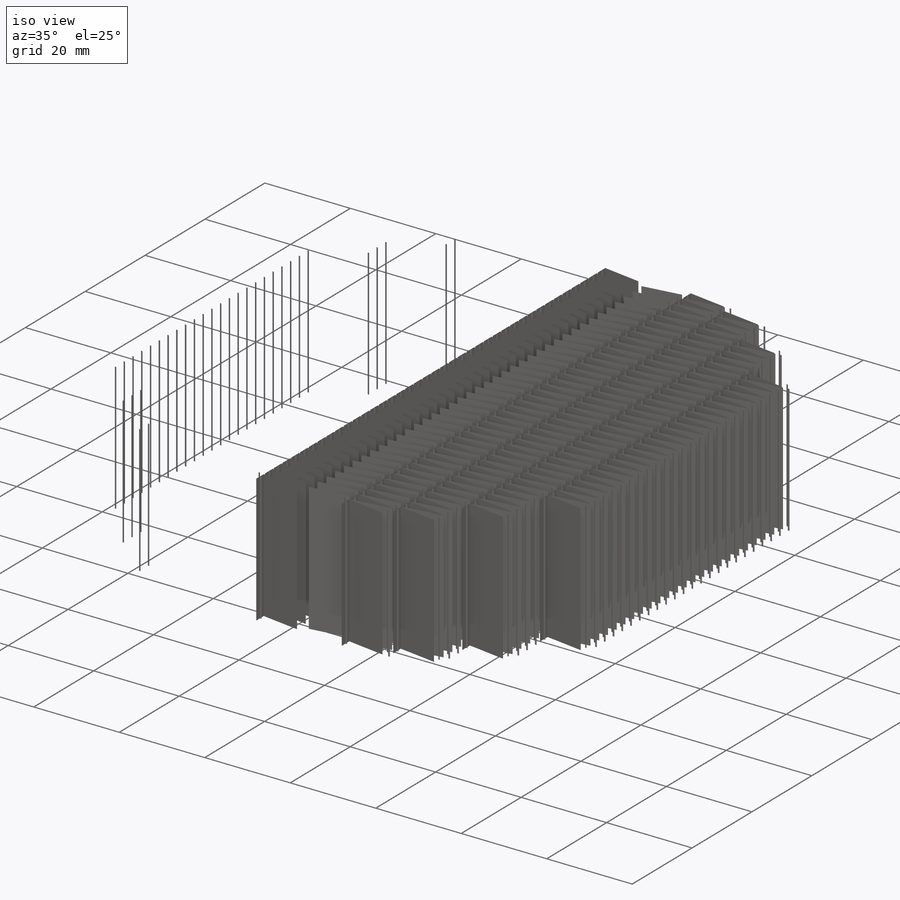
[diagram: iso view]
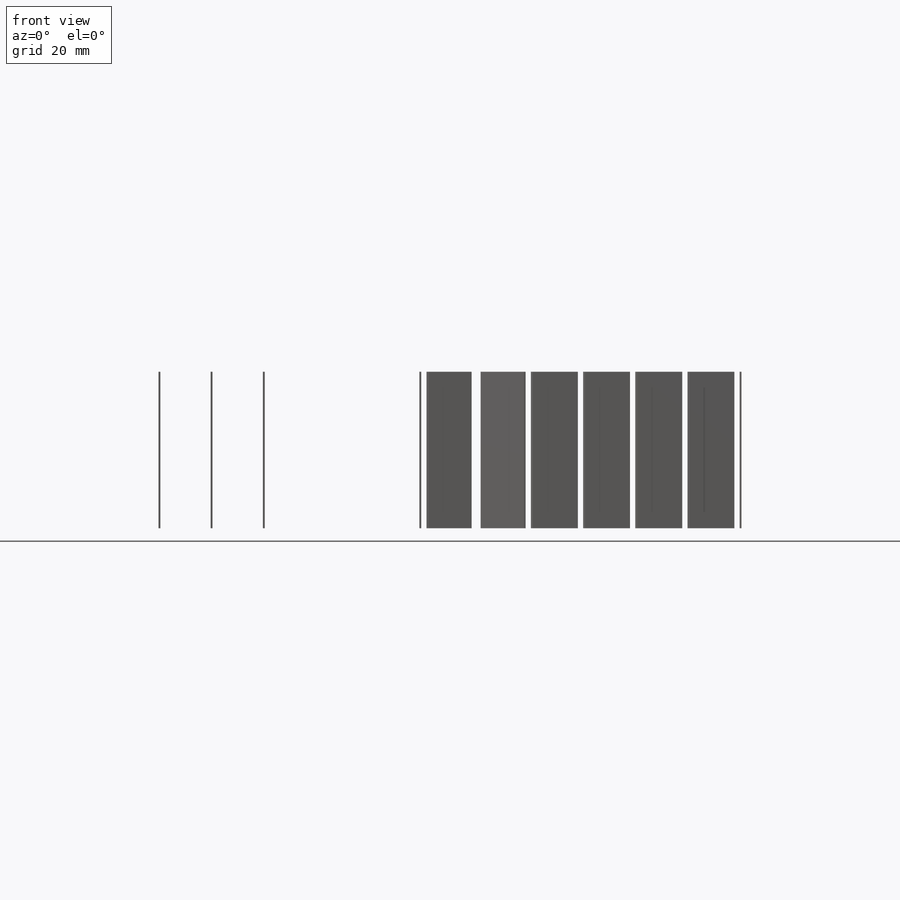
[diagram: front view]
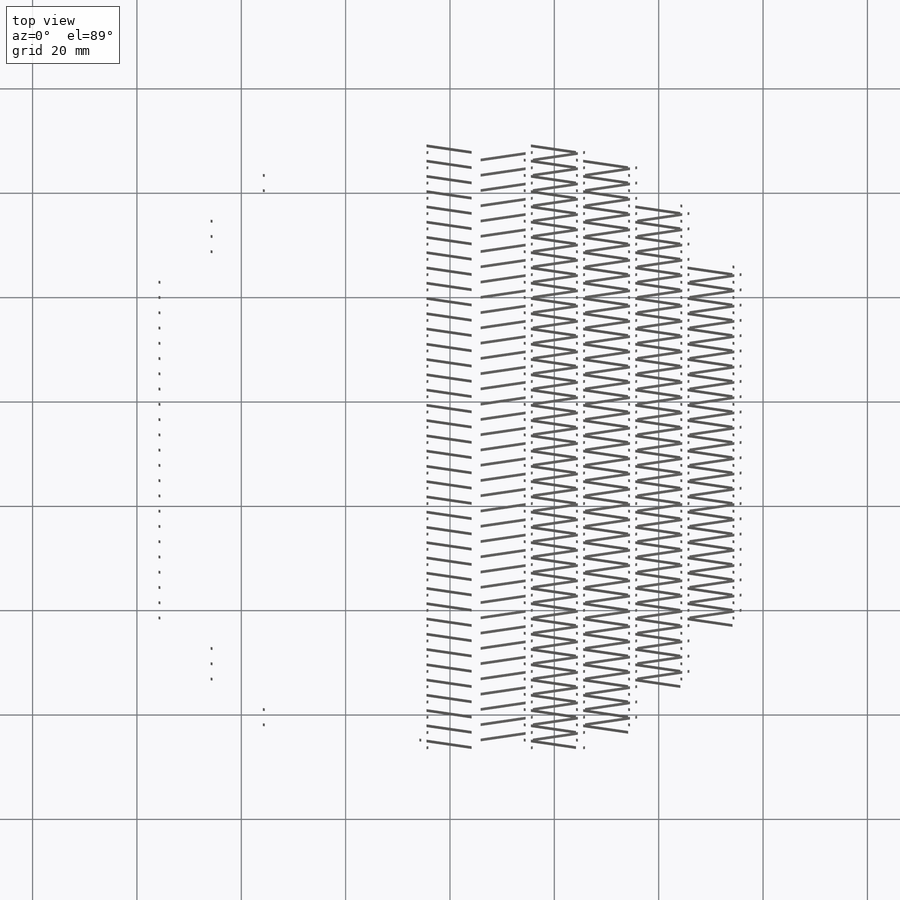
[diagram: top view]
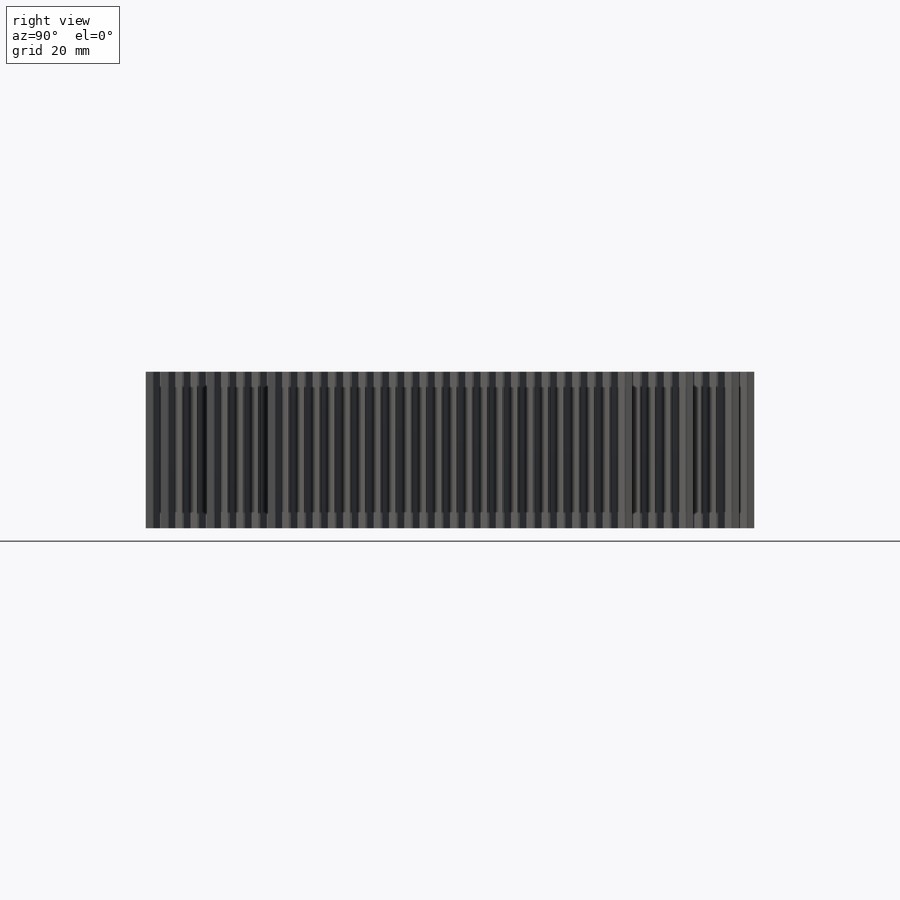
[diagram: right view]
SOLIDWORKS PART (.sldprt)
format: sldprt  version: not decoded by parser v0  size: 6,994,432 bytes
history: native  units: mm
features: sketch x10, thread x6, extrude x2, hole x2, fillet x2, material x1, pattern_linear x1, cut_extrude x1 (+11 scaffold rows collapsed)
feature tree (36):
  scaffold x11  (default folders/planes/origin — collapsed)
  material  "Material <not specified>"
  sketch  "Sketch1"  dims[c1.D10=120.0mm c1.D11=80.0mm c1.D14=80.0mm c1.D1=410.0mm c1.D2=128.0mm c1.D3=7.0mm c1.D4=28.0mm c1.D5=60.0mm c1.D6=5.0mm c1.D7=105.0mm c1.D8=39.0mm c1.D9=105.0mm c1.D12=15.0mm c1.D13=15.0mm c1.D15=47.0mm c2.D5=5.0mm c2.D15=17.0mm c2.D16=22.0mm c2.D17=5.0mm c3.D15=5.0mm]
  extrude  "Extrude1"  Depth=30mm
  sketch  "Sketch2"  dims[c1.D1=5.0mm c1.D2=10.0mm c1.D3=10.0mm c2.D3=~25.675151deg c3.D3=10.0mm c4.D3=25.0deg c5.D3=4.5mm c5.D1=30.0mm c5.D5=0.25mm c5.D6=1.0mm c5.D7=5.0mm]
  sketch  "Sketch3"  dims[D1=30.0mm D5=0.5mm D6=1.0mm D7=5.0mm]
  sketch  "Sketch5"  dims[D1=30.0mm D5=0.5mm D6=1.0mm D7=5.0mm]
  pattern_linear  "LPattern1"  Count1=7 Count2=7 Spacing1=10mm Spacing2=10mm
  sketch  "Sketch6"  dims[D1=0.0mm D2=0.0mm]
  cut_extrude  "Extrude2"  [1 undecoded]
  hole  "M3.5x0.6 Tapped Hole1"  Diameter=2.9mm Depth=30mm
  sketch  "Sketch8"
  sketch  "Sketch7"  dims[hole-wizard template sketch: 59 standard entries collapsed; hole parameters kept: c18.Thru Tap Drill Dia.=2.9mm c18.Thru Tap Drill Depth=30.0mm]
  thread  "Hole Thread5"  Diameter=3.5mm  [1 undecoded]
  thread  "Hole Thread6"  Diameter=3.5mm  [1 undecoded]
  thread  "Hole Thread7"  Diameter=3.5mm  [1 undecoded]
  thread  "Hole Thread8"  Diameter=3.5mm  [1 undecoded]
  sketch  "Sketch9"  dims[c1.D5=5.0mm c1.D6=3.0mm c1.D1=2.0mm c1.D2=94.0mm c1.D3=125.0mm c1.D4=~35.764012mm c2.D4=23.0deg]
  extrude  "Extrude3"  Depth=30mm
  fillet  "Fillet1"  Radius=1mm
  fillet  "Fillet3"  Radius=3mm
  hole  "1/4-18 NPSM Tapped Hole1"  [1 undecoded]
  sketch  "Sketch11"
  thread  "Hole Thread9"  Diameter=13.3604mm  [1 undecoded]
  thread  "Hole Thread10"  Diameter=13.3604mm  [1 undecoded]
  sketch  "Sketch10"  dims[hole-wizard template sketch: 59 standard entries collapsed; hole parameters kept: c18.Thru Tap Drill Dia.=11.8872mm c18.Thru Tap Drill Depth=~30.00005mm]
decode coverage: 20 of 24 modeling features carry decoded parameters
note: ~ marks probable driven/reference dimensions
note: 8 parameter values undecoded
note: suppression state not decoded; provenance and decode notes live in map.json
